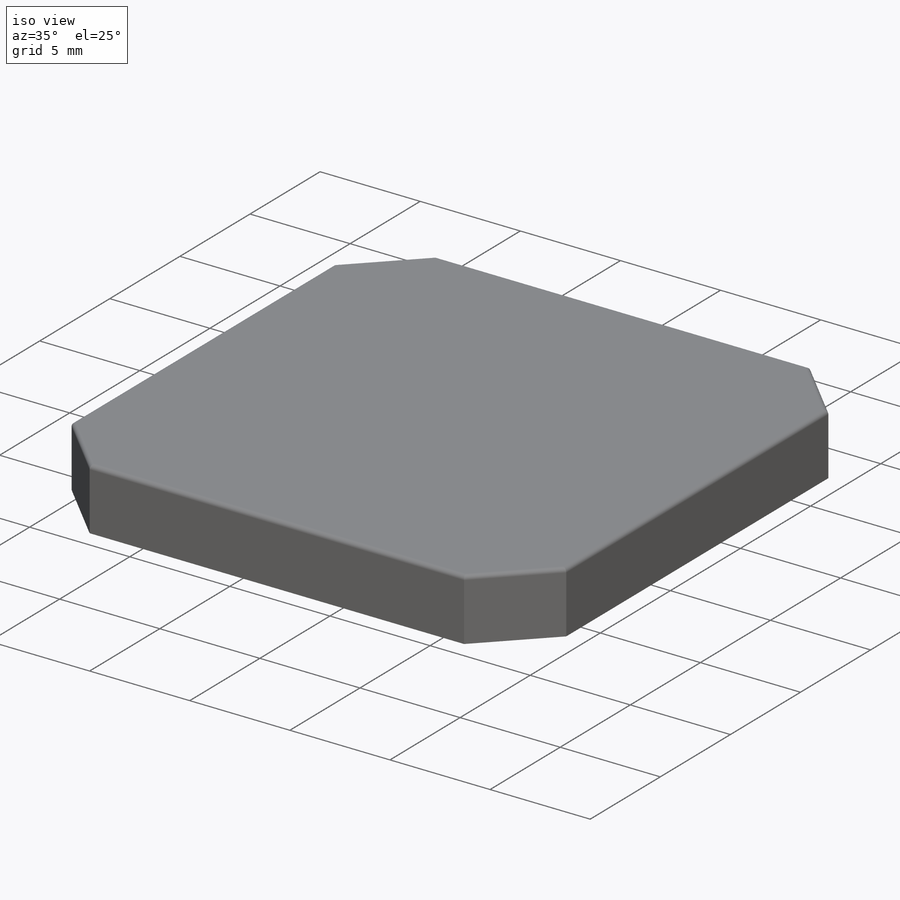
[diagram: iso view]
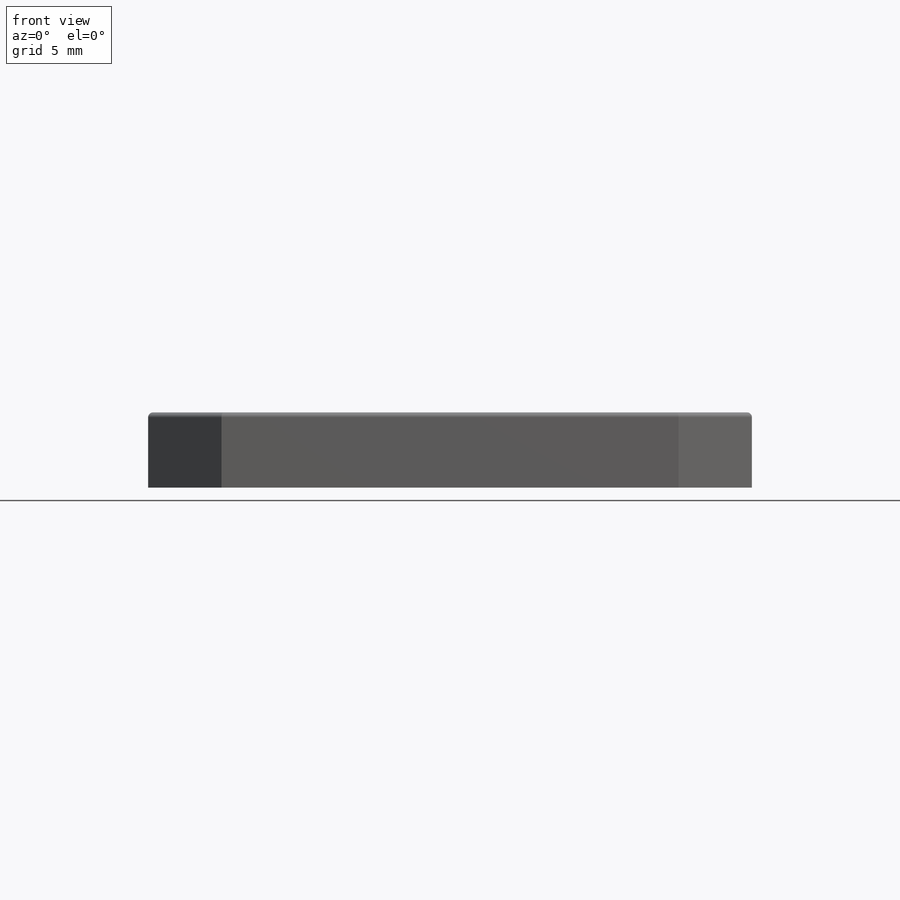
[diagram: front view]
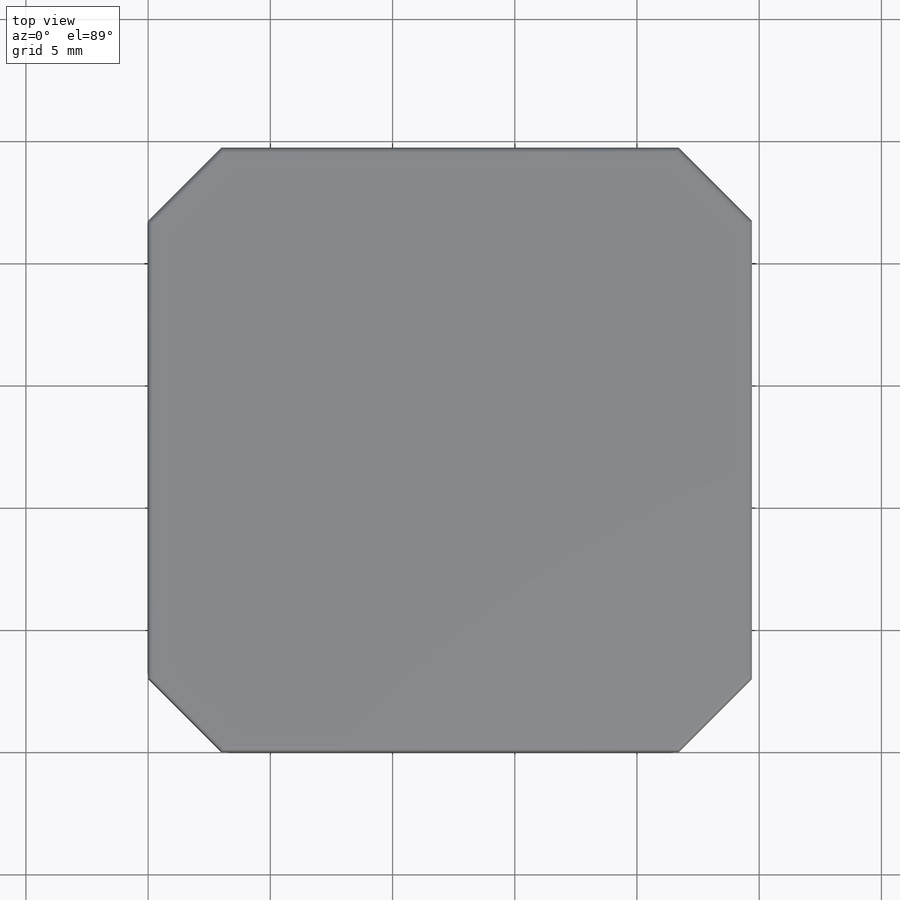
[diagram: top view]
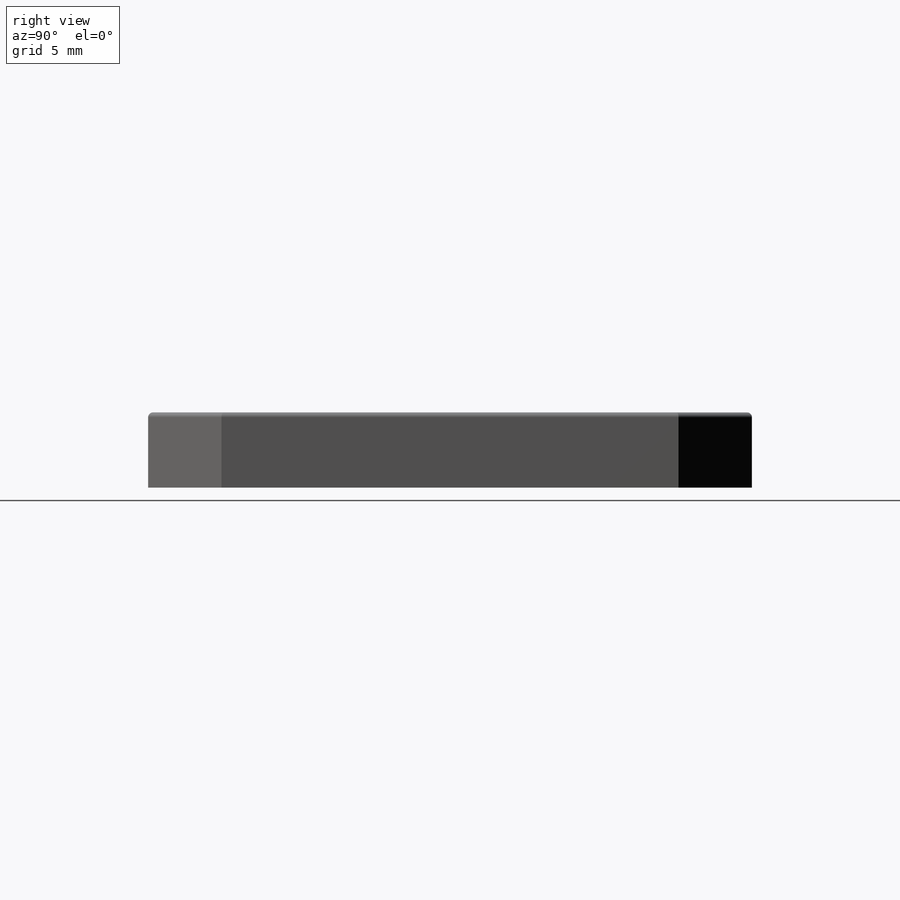
[diagram: right view]
SOLIDWORKS PART (.sldprt)
format: sldprt  version: not decoded by parser v0  size: 289,792 bytes
history: native  units: mm
features: plane x3, fillet x3, cut_extrude x2, material x1, sketch x1, extrude x1, chamfer x1 (+10 scaffold rows collapsed)
feature tree (22):
  scaffold x10  (default folders/planes/origin — collapsed)
  material  "Matériau <non spécifié>"
  plane  "Plan de face"
  plane  "Plan de dessus"
  plane  "Plan de droite"
  sketch  "Esquisse1"  dims[D1=24.7mm D2=24.7mm]
  extrude  "Boss.-Extru.1"  Depth=3.08mm
  chamfer  "Chanfrein1"  Distance=3mm Angle=45deg
  fillet  "Congé1"  Radius=0.2mm
  fillet  "Esquisse2"  Radius=6mm
  cut_extrude  "Enlèv. mat.-Extru.1"  Depth=22.08mm
  fillet  "Esquisse3"  Radius=0.3mm
  cut_extrude  "Enlèv. mat.-Extru.2"  [1 undecoded]
decode coverage: 7 of 8 modeling features carry decoded parameters
note: 1 parameter value undecoded
note: suppression state not decoded; provenance and decode notes live in map.json
